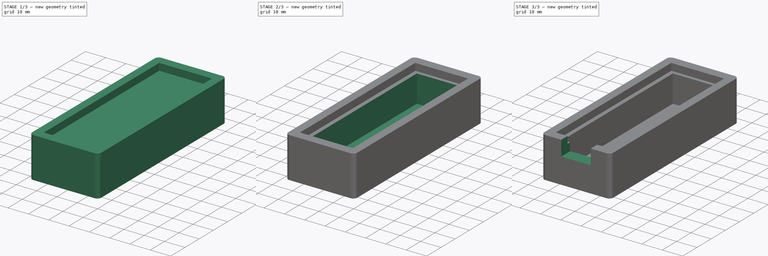
[diagram: build sequence overview — one tinted view per stage of 3, left to right]
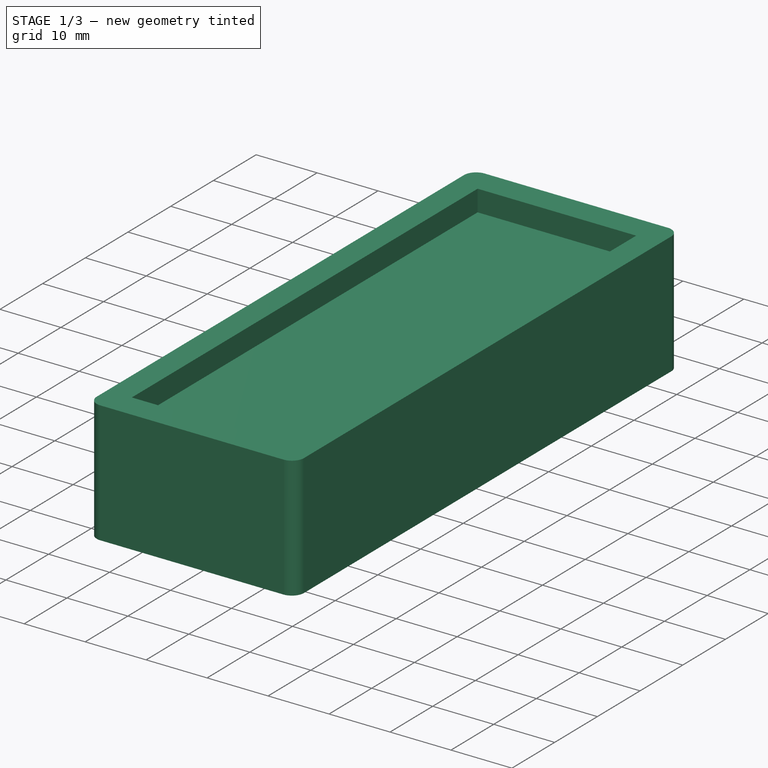
[diagram: stage 1 of 3 — iso view after this stage's code; geometry added in this stage tinted green]
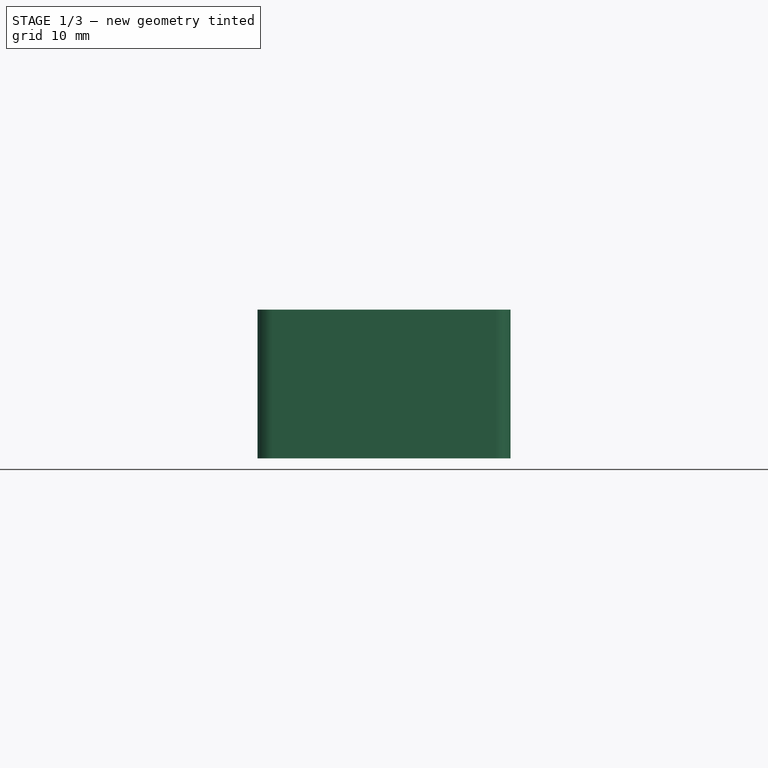
[diagram: stage 1 of 3 — front view after this stage's code; geometry added in this stage tinted green]
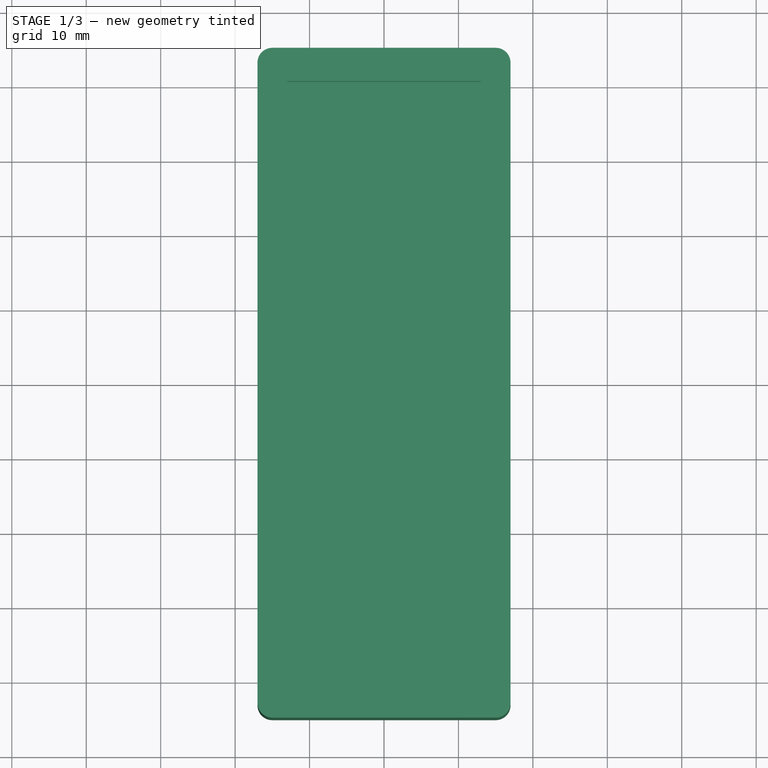
[diagram: stage 1 of 3 — top view after this stage's code; geometry added in this stage tinted green]
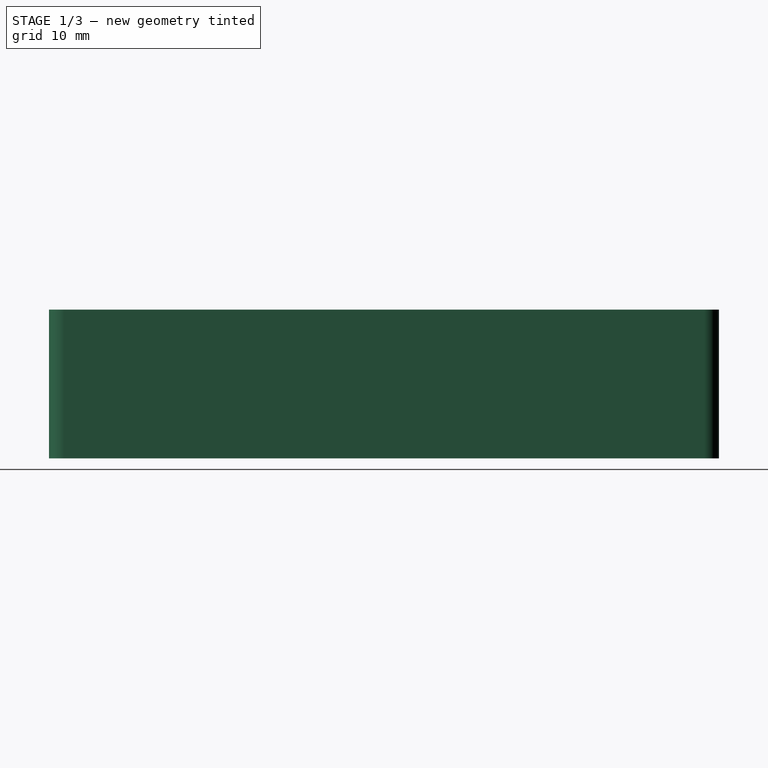
[diagram: stage 1 of 3 — right view after this stage's code; geometry added in this stage tinted green]
FCSTD DOCUMENT  (FreeCAD 1.0R39285 (Git))
Label: peltier_stack_jig
License: All rights reserved
LicenseURL: https://en.wikipedia.org/wiki/All_rights_reserved
objects: Sketcher::SketchObject×5, PartDesign::Pocket×4, Spreadsheet::Sheet×1, PartDesign::Pad×1, PartDesign::Body×1
note: 26 computed .brp shape members not serialized (recipe doc carries the construction recipe); baked Part::Feature solids carry a one-line shape summary decoded from their .brp

FEATURE [Spreadsheet::Sheet] Spreadsheet
  cells = A2='Design Parameters; A3='base_length; B3(base_length)==90 mm; A4='base_width; B4(base_width)==34 mm; A5='base_height; B5(base_height)==20 mm; A6='base_corner_radius; B6(base_corner_radius)==2 mm; A8='thermal_plate_length; B8(thermal_plate_length)==80 mm; A9='thermal_plate_width; B9(thermal_plate_width)==25 mm; A10='thermal_plate_height; B10(thermal_plate_height)==5 mm; A11='thermal_plate_side_margin; B11(thermal_plate_side_margin)==0.5 mm; A12='thermal_plate_pocket_length; B12(thermal_plate_pocket_length)==thermal_plate_length + 2 * thermal_plate_side_margin; A13='thermal_plate_pocket_width; B13(thermal_plate_pocket_width)==thermal_plate_width + 2 * thermal_plate_side_margin; A14='thermal_plate_pocket_depth; B14(thermal_plate_pocket_depth)==0.7 * thermal_plate_height; A16='heatsink_length; B16(heatsink_length)==76.5 mm; A17='heatsink_width; B17(heatsink_width)==21 mm; A18='heatsink_height; B18(heatsink_height)==10 mm; A19='heatsink_side_margin; B19(heatsink_side_margin)==0.5 mm; A20='thermal_tape_thickness; B20(thermal_tape_thickness)==0.3 mm; A22='peltier_height; B22(peltier_height)==3.34 mm; A23='peltier_width; B23(peltier_width)==16 mm; A24='peltier_cable_cutout_width; B24(peltier_cable_cutout_width)==14.5 mm; A25='peltier_cable_cutout_height; B25(peltier_cable_cutout_height)==thermal_plate_pocket_depth + peltier_height + 2 * thermal_tape_thickness; A26='peltier_cable_cutout_pocket_depth; B26(peltier_cable_cutout_pocket_depth)==0.5 * base_length; A28='heatsink_peltier_pocket_height_margin; B28(heatsink_peltier_pocket_height_margin)==0.5 mm; A29='heatsink_peltier_pocket_length; B29(heatsink_peltier_pocket_length)==heatsink_length + 2 * heatsink_side_margin; A30='heatsink_peltier_pocket_width; B30(heatsink_peltier_pocket_width)==heatsink_width + 2 * heatsink_side_margin; A31='heatsink_peltier_pocket_depth; B31(heatsink_peltier_pocket_depth)==heatsink_height + peltier_height + 2 * thermal_tape_thickness - heatsink_peltier_pocket_height_margin; A33='bottom_hole_diameter; B33(bottom_hole_diameter)==10 mm
FEATURE [Sketcher::SketchObject] Sketch  label="BaseSketch"
  ArcFitTolerance = 1e-06
  AttachmentSupport = -> [XY_Plane]
  FullyConstrained = true
  MakeInternals = false
  MapMode = 5
  expr: Constraints[19] = Spreadsheet.base_corner_radius
  expr: Constraints[21] = Spreadsheet.base_length
  expr: Constraints[22] = Spreadsheet.base_width
  sketch-geometry (10):
    g0: LineSegment StartX=-17 StartY=43 StartZ=0 EndX=-17 EndY=-43 EndZ=0
    g1: LineSegment StartX=-15 StartY=-45 StartZ=0 EndX=15 EndY=-45 EndZ=0
    g2: LineSegment StartX=17 StartY=-43 StartZ=0 EndX=17 EndY=43 EndZ=0
    g3: LineSegment StartX=15 StartY=45 StartZ=0 EndX=-15 EndY=45 EndZ=0
    g4: ArcOfCircle CenterX=-15 CenterY=43 CenterZ=0 NormalX=0 NormalY=0 NormalZ=1 AngleXU=0 Radius=2 StartAngle=1.5708 EndAngle=3.14159
    g5: ArcOfCircle CenterX=-15 CenterY=-43 CenterZ=0 NormalX=0 NormalY=0 NormalZ=1 AngleXU=0 Radius=2 StartAngle=3.14159 EndAngle=4.71239
    g6: ArcOfCircle CenterX=15 CenterY=-43 CenterZ=0 NormalX=0 NormalY=0 NormalZ=1 AngleXU=0 Radius=2 StartAngle=4.71239 EndAngle=6.28319
    g7: ArcOfCircle CenterX=15 CenterY=43 CenterZ=0 NormalX=0 NormalY=0 NormalZ=1 AngleXU=0 Radius=2 StartAngle=-3.739e-13 EndAngle=1.5708
    g8: GeomPoint [constr] X=-17 Y=45 Z=0
    g9: GeomPoint [constr] X=17 Y=-45 Z=0
  constraints (23):
    c: Tangent(g0,g4) = -1.5708
    c: Tangent(g0,g5) = -1.5708
    c: Tangent(g1,g5) = -1.5708
    c: Tangent(g1,g6) = -1.5708
    c: Tangent(g2,g6) = -1.5708
    c: Tangent(g2,g7) = -1.5708
    c: Tangent(g3,g7) = -1.5708
    c: Tangent(g3,g4) = -1.5708
    c: Vertical(g0)
    c: Vertical(g2)
    c: Horizontal(g1)
    c: Horizontal(g3)
    c: Equal(g4,g5)
    c: Equal(g5,g6)
    c: Equal(g6,g7)
    c: PointOnObject(g8,g0)
    c: PointOnObject(g8,g3)
    c: PointOnObject(g9,g1)
    c: PointOnObject(g9,g2)
    c: Radius(g5) = 2
    c: Symmetric(g4,g6,g-1)
    c: DistanceY(g1,g3) = 90
    c: DistanceX(g0,g2) = 34
FEATURE [PartDesign::Pad] Pad  label="BasePad"
  Direction = (0,0,1)
  Length = 20
  Length2 = 10
  Profile = -> Sketch
  ReferenceAxis = -> Sketch [N_Axis]
  Refine = true
  Suppressed = false
  Type = 0
  expr: Length = Spreadsheet.base_height
FEATURE [Sketcher::SketchObject] Sketch001  label="ThermalPlatePocketSketch"
  ArcFitTolerance = 1e-06
  AttachmentSupport = -> [Pad]
  FullyConstrained = true
  MakeInternals = false
  MapMode = 5
  Placement = pos=(0,0,20) rot=(0,0,1;0rad)
  expr: Constraints[10] = Spreadsheet.thermal_plate_pocket_length
  expr: Constraints[11] = Spreadsheet.thermal_plate_pocket_width
  sketch-geometry (5):
    g0: LineSegment StartX=-13 StartY=40.5 StartZ=0 EndX=-13 EndY=-40.5 EndZ=0
    g1: LineSegment StartX=-13 StartY=-40.5 StartZ=0 EndX=13 EndY=-40.5 EndZ=0
    g2: LineSegment StartX=13 StartY=-40.5 StartZ=0 EndX=13 EndY=40.5 EndZ=0
    g3: LineSegment StartX=13 StartY=40.5 StartZ=0 EndX=-13 EndY=40.5 EndZ=0
    g4: GeomPoint [constr] X=0 Y=0 Z=0
  constraints (12):
    c: Coincident(g0,g1)
    c: Coincident(g1,g2)
    c: Coincident(g2,g3)
    c: Coincident(g3,g0)
    c: Vertical(g0)
    c: Vertical(g2)
    c: Horizontal(g1)
    c: Horizontal(g3)
    c: Symmetric(g2,g0,g4)
    c: Coincident(g4,g-1)
    c: Distance(g2,g2) = 81
    c: Distance(g1,g1) = 26
FEATURE [PartDesign::Pocket] Pocket  label="ThermalPlatePocket"
  BaseFeature = -> Pad
  Direction = (0,0,-1)
  Length = 3.5
  Length2 = 5
  Profile = -> Sketch001
  ReferenceAxis = -> Sketch001 [N_Axis]
  Refine = true
  Suppressed = false
  Type = 0
  expr: Length = Spreadsheet.thermal_plate_pocket_depth
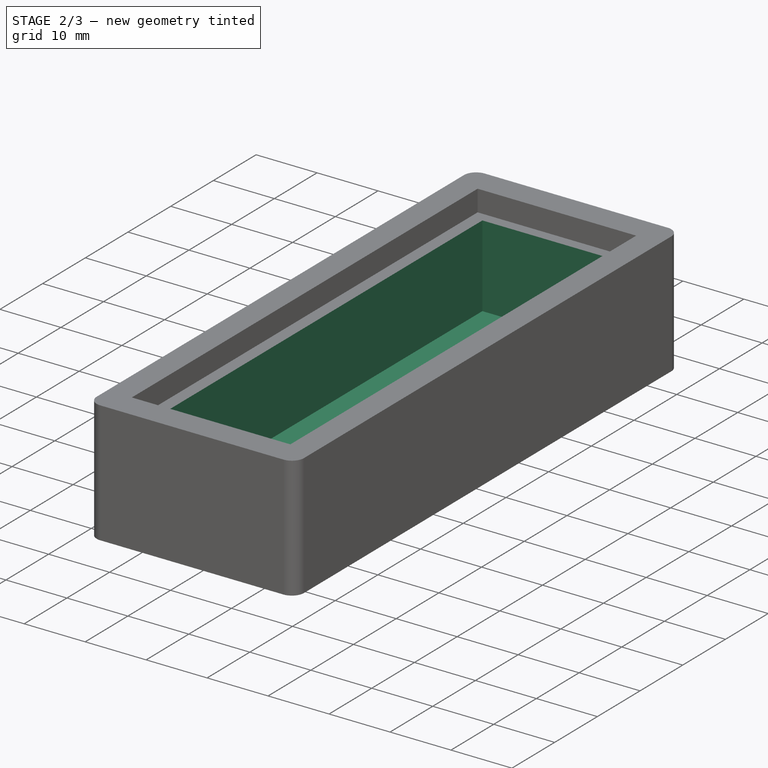
[diagram: stage 2 of 3 — iso view after this stage's code; geometry added in this stage tinted green]
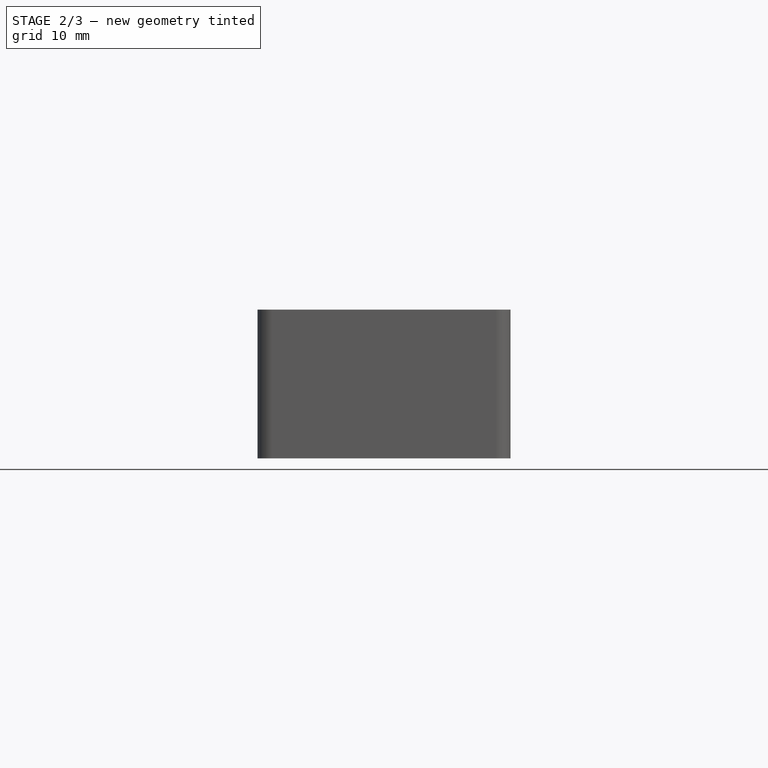
[diagram: stage 2 of 3 — front view after this stage's code; geometry added in this stage tinted green]
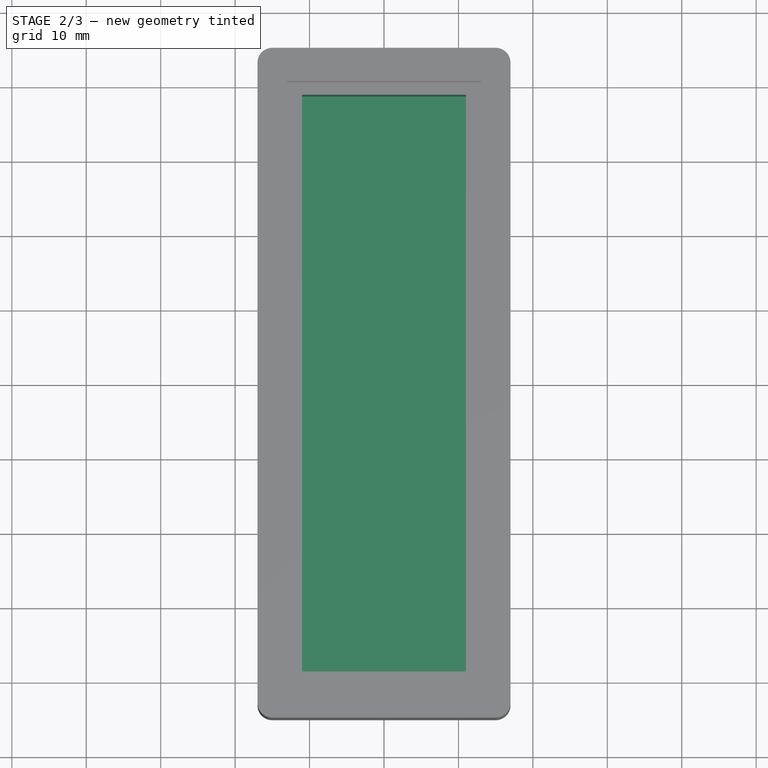
[diagram: stage 2 of 3 — top view after this stage's code; geometry added in this stage tinted green]
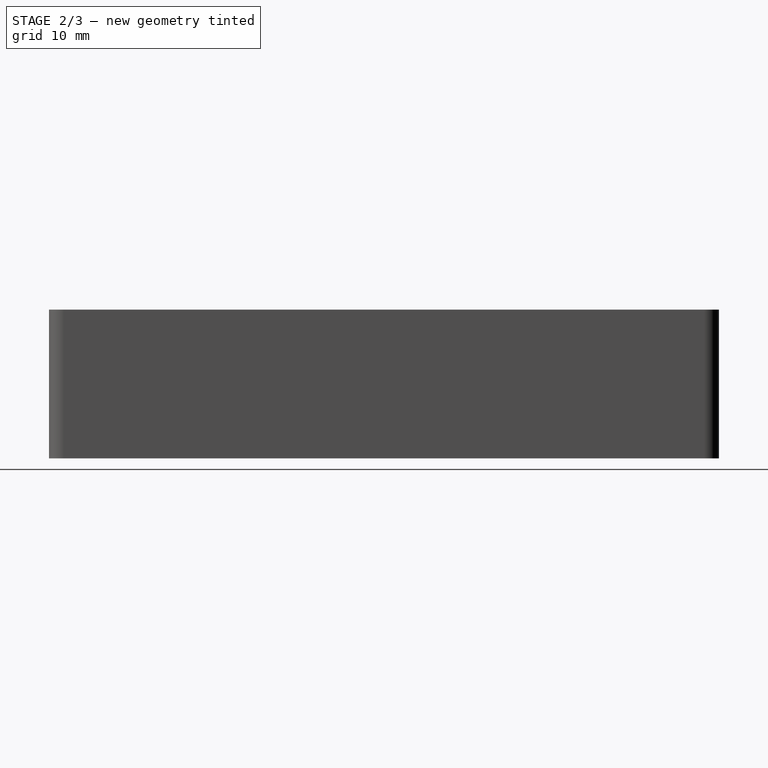
[diagram: stage 2 of 3 — right view after this stage's code; geometry added in this stage tinted green]
FEATURE [Sketcher::SketchObject] Sketch002  label="HeatsinkPeltierPocketSketch"
  ArcFitTolerance = 1e-06
  AttachmentSupport = -> [Pocket]
  FullyConstrained = true
  MakeInternals = false
  MapMode = 5
  Placement = pos=(0,0,16.5) rot=(0,0,1;0rad)
  expr: Constraints[10] = Spreadsheet.heatsink_peltier_pocket_length
  expr: Constraints[11] = Spreadsheet.heatsink_peltier_pocket_width
  sketch-geometry (5):
    g0: LineSegment StartX=-11 StartY=38.75 StartZ=0 EndX=-11 EndY=-38.75 EndZ=0
    g1: LineSegment StartX=-11 StartY=-38.75 StartZ=0 EndX=11 EndY=-38.75 EndZ=0
    g2: LineSegment StartX=11 StartY=-38.75 StartZ=0 EndX=11 EndY=38.75 EndZ=0
    g3: LineSegment StartX=11 StartY=38.75 StartZ=0 EndX=-11 EndY=38.75 EndZ=0
    g4: GeomPoint [constr] X=0 Y=0 Z=0
  constraints (12):
    c: Coincident(g0,g1)
    c: Coincident(g1,g2)
    c: Coincident(g2,g3)
    c: Coincident(g3,g0)
    c: Vertical(g0)
    c: Vertical(g2)
    c: Horizontal(g1)
    c: Horizontal(g3)
    c: Symmetric(g2,g0,g4)
    c: Coincident(g4,g-1)
    c: DistanceY(g2,g2) = 77.5
    c: Distance(g1,g1) = 22
FEATURE [PartDesign::Pocket] Pocket001  label="HeatsinkPeltierPocket"
  BaseFeature = -> Pocket
  Direction = (0,0,-1)
  Length = 13.44
  Length2 = 5
  Profile = -> Sketch002
  ReferenceAxis = -> Sketch002 [N_Axis]
  Refine = true
  Suppressed = false
  Type = 0
  expr: Length = Spreadsheet.heatsink_peltier_pocket_depth
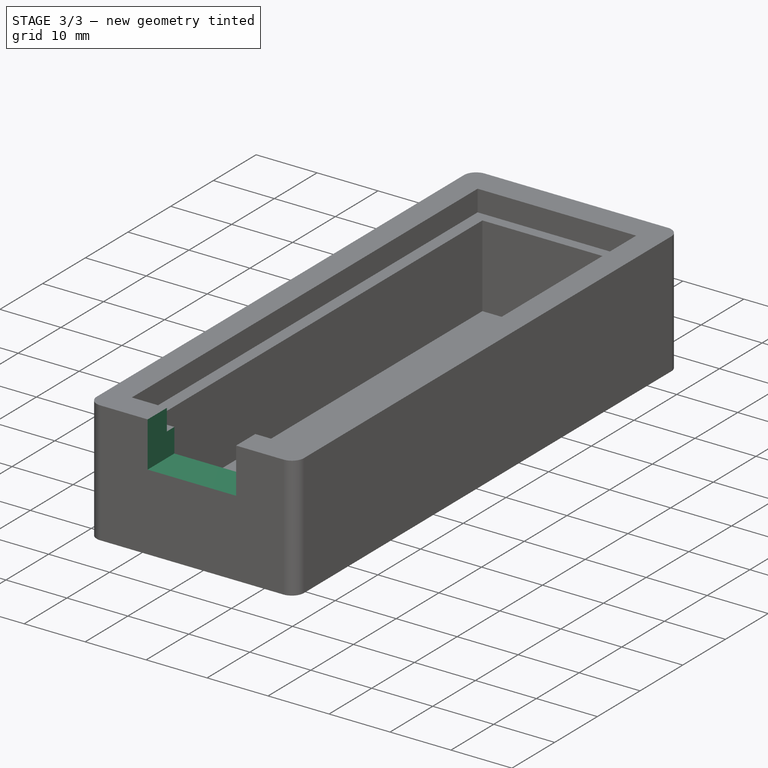
[diagram: stage 3 of 3 — iso view after this stage's code; geometry added in this stage tinted green]
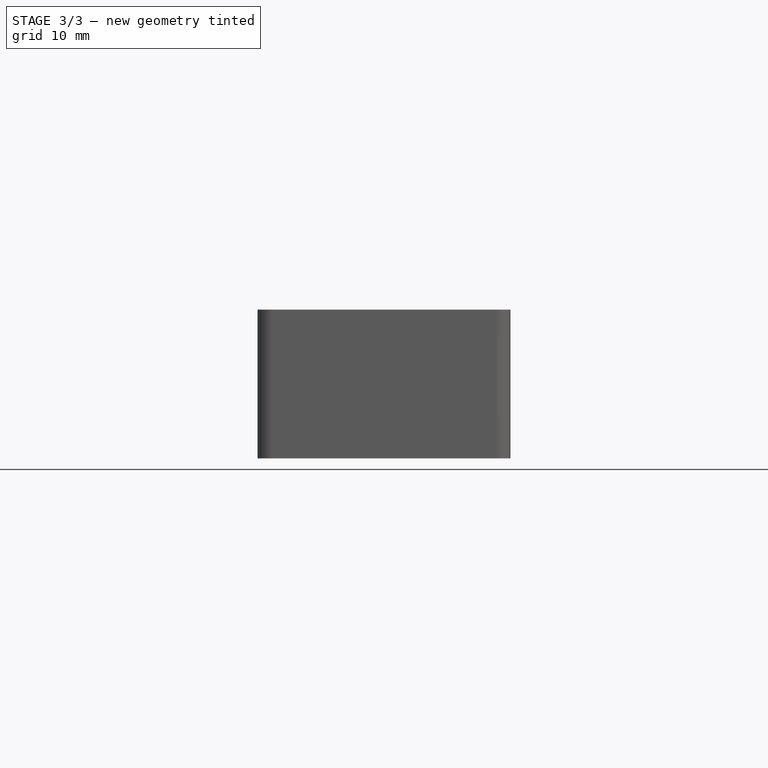
[diagram: stage 3 of 3 — front view after this stage's code; geometry added in this stage tinted green]
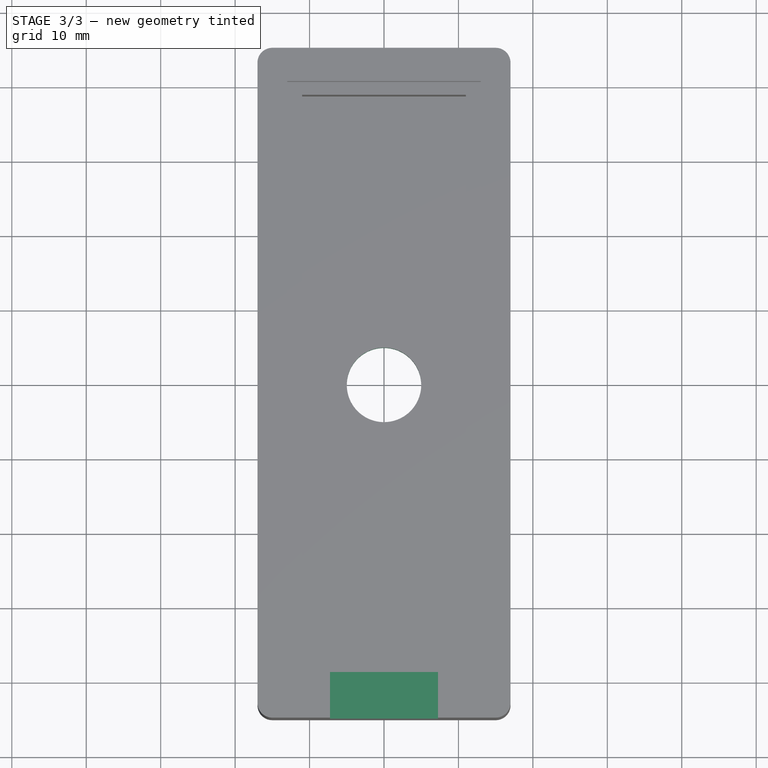
[diagram: stage 3 of 3 — top view after this stage's code; geometry added in this stage tinted green]
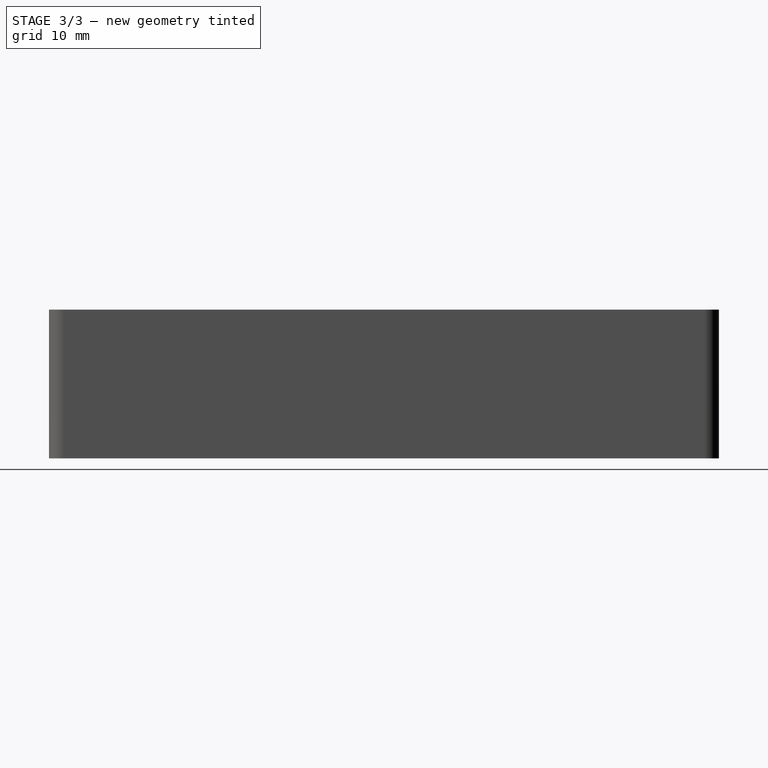
[diagram: stage 3 of 3 — right view after this stage's code; geometry added in this stage tinted green]
FEATURE [Sketcher::SketchObject] Sketch003  label="PeltierCableCutoutSketch"
  ArcFitTolerance = 1e-06
  AttachmentSupport = -> [Pocket001]
  FullyConstrained = true
  MakeInternals = false
  MapMode = 5
  Placement = pos=(0,-45,0) rot=(1,0,0;1.5708rad)
  expr: Constraints[12] = Spreadsheet.peltier_cable_cutout_width
  expr: Constraints[13] = Spreadsheet.peltier_cable_cutout_height
  expr: Constraints[2] = Spreadsheet.base_height
  sketch-geometry (5):
    g0: LineSegment [constr] StartX=0 StartY=0 StartZ=0 EndX=0 EndY=20 EndZ=0
    g1: LineSegment StartX=-7.25 StartY=20 StartZ=0 EndX=-7.25 EndY=12.56 EndZ=0
    g2: LineSegment StartX=-7.25 StartY=12.56 StartZ=0 EndX=7.25 EndY=12.56 EndZ=0
    g3: LineSegment StartX=7.25 StartY=12.56 StartZ=0 EndX=7.25 EndY=20 EndZ=0
    g4: LineSegment StartX=7.25 StartY=20 StartZ=0 EndX=-7.25 EndY=20 EndZ=0
  constraints (14):
    c: Vertical(g0)
    c: Coincident(g-1,g0)
    c: Distance(g0,g0) = 20
    c: Coincident(g1,g2)
    c: Coincident(g2,g3)
    c: Coincident(g3,g4)
    c: Coincident(g4,g1)
    c: Vertical(g1)
    c: Vertical(g3)
    c: Horizontal(g2)
    c: Symmetric(g1,g3,g0)
    c: PointOnObject(g0,g4)
    c: Distance(g2,g2) = 14.5
    c: Distance(g1,g1) = 7.44
FEATURE [PartDesign::Pocket] Pocket002  label="PeltierCableCutoutPocket"
  BaseFeature = -> Pocket001
  Direction = (0,1,-2e-16)
  Length = 45
  Length2 = 5
  Profile = -> Sketch003
  ReferenceAxis = -> Sketch003 [N_Axis]
  Refine = true
  Suppressed = false
  Type = 0
  expr: Length = Spreadsheet.peltier_cable_cutout_pocket_depth
FEATURE [Sketcher::SketchObject] Sketch004  label="BottomHoleSketch"
  ArcFitTolerance = 1e-06
  AttachmentSupport = -> [Pocket002]
  FullyConstrained = true
  MakeInternals = false
  MapMode = 5
  Placement = pos=(0,0,3.06) rot=(0,0,1;0rad)
  expr: Constraints[1] = Spreadsheet.bottom_hole_diameter
  sketch-geometry (1):
    g0: Circle CenterX=0 CenterY=0 CenterZ=0 NormalX=0 NormalY=0 NormalZ=1 AngleXU=0 Radius=5
  constraints (2):
    c: Coincident(g0,g-1)
    c: Diameter(g0) = 10
FEATURE [PartDesign::Pocket] Pocket003  label="BottomHolePocket"
  BaseFeature = -> Pocket002
  Direction = (0,0,-1)
  Length = 5
  Length2 = 5
  Profile = -> Sketch004
  ReferenceAxis = -> Sketch004 [N_Axis]
  Refine = true
  Suppressed = false
  Type = 1
FEATURE [PartDesign::Body] Body
  AllowCompound = false
  Group = -> [Sketch,Pad,Sketch001,Pocket,Sketch002,Pocket001,Sketch003,Pocket002,Sketch004,Pocket003]
  Origin = -> Origin
  Tip = -> Pocket003
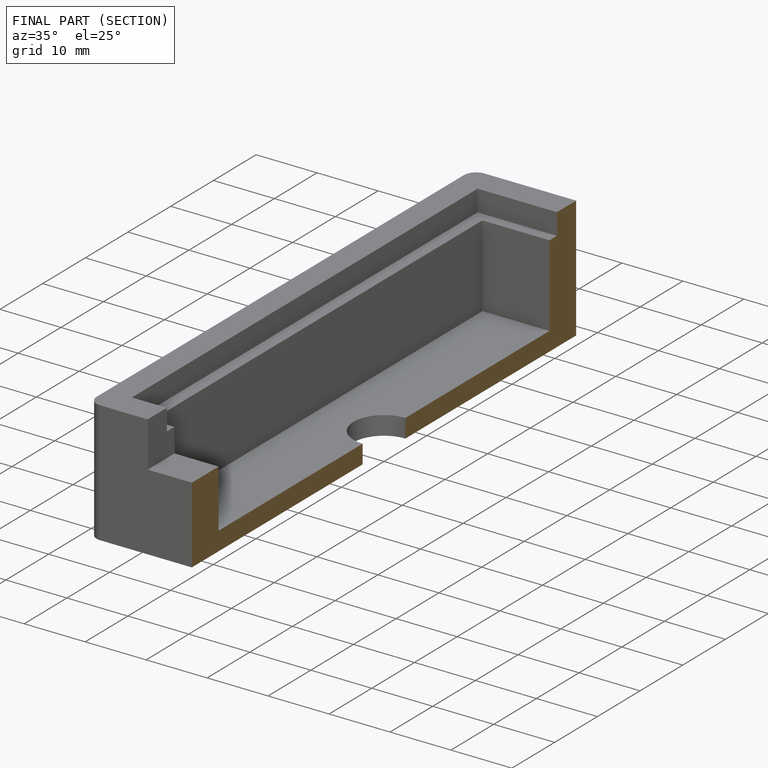
[diagram: finished part — half-section view (interior)]
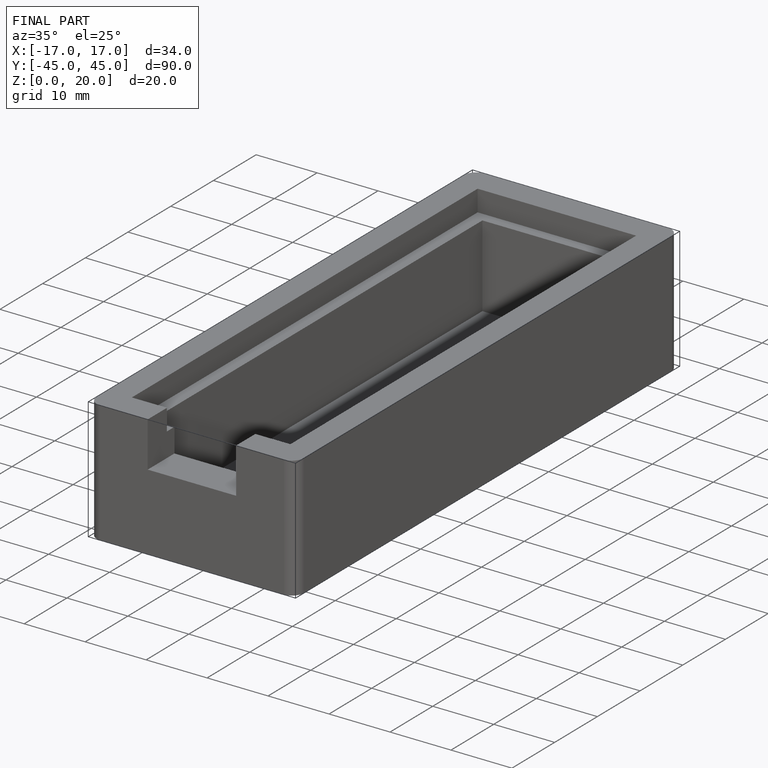
[diagram: finished part — iso view with bounding-box wireframe]
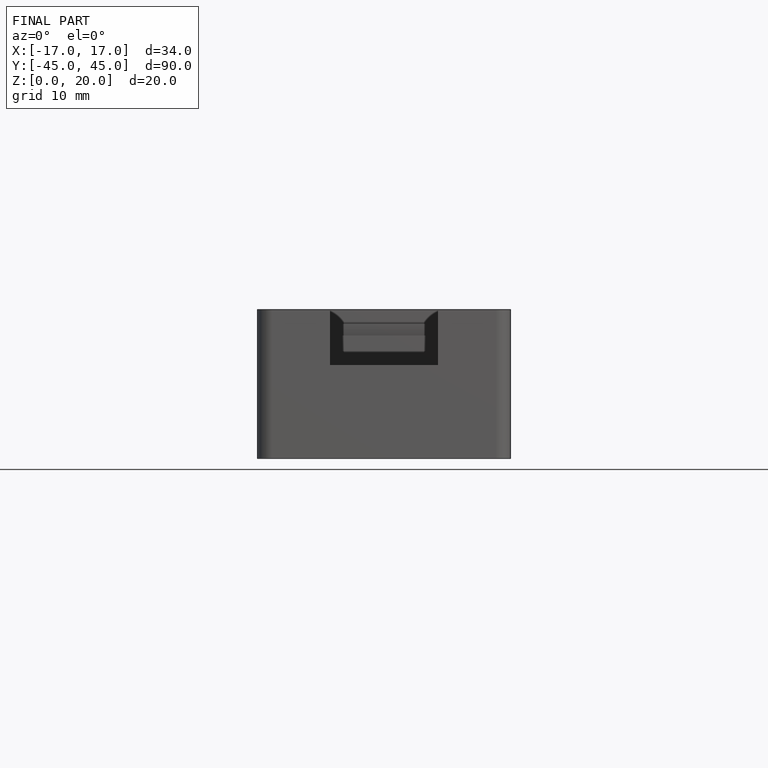
[diagram: finished part — front view with bounding-box wireframe]
